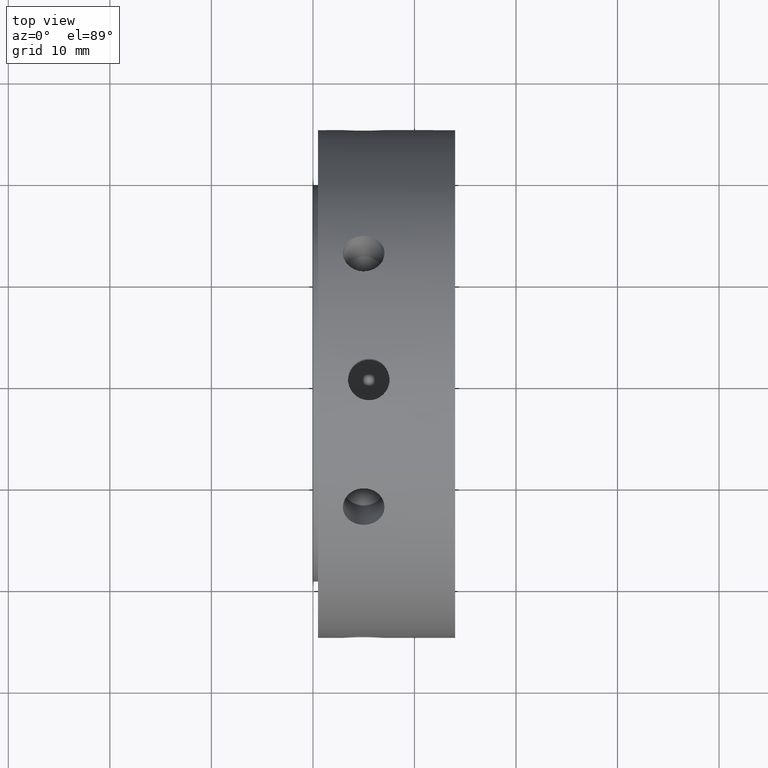
[diagram: clean part render]
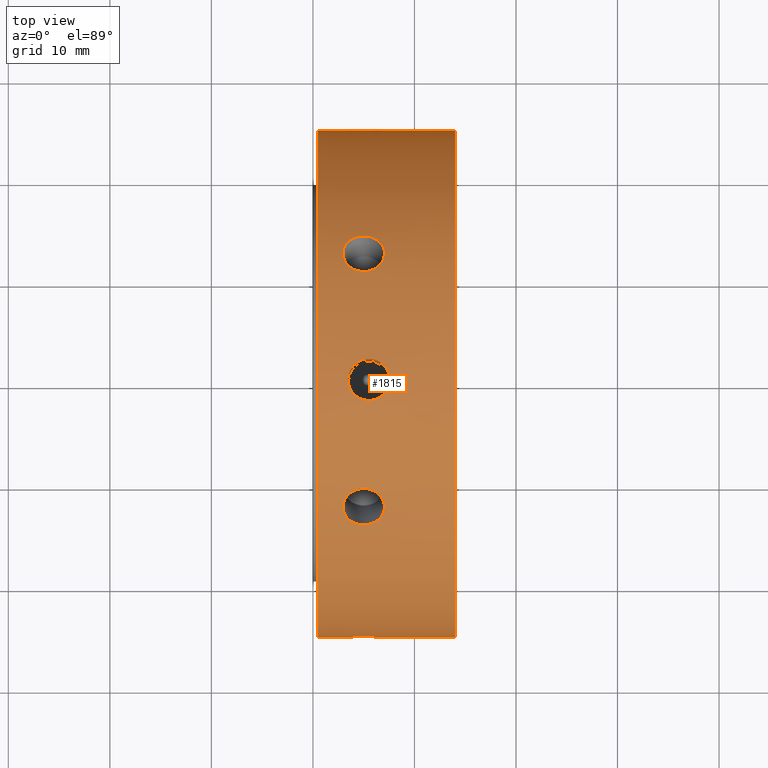
[diagram: same view with one face highlighted and labeled with its STEP entity id]
A machine part, top view. The second image highlights one B-rep face of the part: STEP entity #1815.
In plain terms, the highlighted cylindrical surface (bore or boss wall) has radius 25 mm, axis along (1, 0, 0).
Its self-contained STEP definition (entity closure, byte-faithful):
#534=CARTESIAN_POINT('',(2.949999999999995,12.500000000000018,21.650635094610951));
#535=VERTEX_POINT('',#534);
#536=CARTESIAN_POINT('',(7.049999999999994,12.500000000000014,21.650635094610955));
#537=VERTEX_POINT('',#536);
#538=CARTESIAN_POINT('',(2.949999999999995,12.500000000000014,21.650635094610955));
#539=CARTESIAN_POINT('',(2.949999999999995,12.723024458328126,21.521871863559348));
#540=CARTESIAN_POINT('',(3.001490384965772,12.958652821652588,21.380765823781619));
#541=CARTESIAN_POINT('',(3.210736463123908,13.388103820717696,21.114509377441824));
#542=CARTESIAN_POINT('',(3.36848576715227,13.58204775863438,20.989549648747456));
#543=CARTESIAN_POINT('',(3.732376709121705,13.88661907983961,20.789300767664429));
#544=CARTESIAN_POINT('',(3.962816827223532,14.017602360052274,20.700672288664141));
#545=CARTESIAN_POINT('',(4.467860116695286,14.190866034890195,20.58228195169432));
#546=CARTESIAN_POINT('',(4.742473142802083,14.233256195225065,20.552722887274257));
#547=CARTESIAN_POINT('',(5.257526857197906,14.233256195225065,20.552722887274257));
#548=CARTESIAN_POINT('',(5.532139883304704,14.190866034890192,20.58228195169432));
#549=CARTESIAN_POINT('',(6.037183172776456,14.017602360052276,20.700672288664141));
#550=CARTESIAN_POINT('',(6.267623290878284,13.88661907983961,20.789300767664429));
#551=CARTESIAN_POINT('',(6.631514232847717,13.58204775863438,20.989549648747456));
#552=CARTESIAN_POINT('',(6.789263536876081,13.388103820717696,21.114509377441824));
#553=CARTESIAN_POINT('',(6.998509615034216,12.958652821652588,21.380765823781619));
#554=CARTESIAN_POINT('',(7.049999999999995,12.723024458328126,21.521871863559348));
#555=CARTESIAN_POINT('',(7.049999999999995,12.500000000000014,21.650635094610955));
#556=B_SPLINE_CURVE_WITH_KNOTS('',3,(#538,#539,#540,#541,#542,#543,#544,#545,#546,#547,#548,#549,#550,#551,#552,#553,#554,#555),.UNSPECIFIED.,.F.,.U.,(4,2,2,2,2,2,2,2,4),(0.309031991580675,0.386289930211639,0.463547868842603,0.540805926001976,0.61806398316135,0.695322040320723,0.772580097480097,0.849838036111061,0.927095974742025),.UNSPECIFIED.);
#557=EDGE_CURVE('',#535,#537,#556,.T.);
#559=CARTESIAN_POINT('',(7.049999999999994,12.500000000000014,21.650635094610955));
#560=CARTESIAN_POINT('',(7.049999999999994,12.276975541671899,21.779398325662562));
#561=CARTESIAN_POINT('',(6.998509615034218,12.036959944934742,21.91290545426483));
#562=CARTESIAN_POINT('',(6.789263536876081,11.591649598950557,22.151692705965928));
#563=CARTESIAN_POINT('',(6.631514232847717,11.38645933049288,22.257173218764574));
#564=CARTESIAN_POINT('',(6.267623290878284,11.060753051792954,22.420815279650981));
#565=CARTESIAN_POINT('',(6.037183172776459,10.9185068973736,22.489935888286027));
#566=CARTESIAN_POINT('',(5.532139883304708,10.729346020576177,22.580791463763802));
#567=CARTESIAN_POINT('',(5.257526857197906,10.682552039708868,22.602722887274261));
#568=CARTESIAN_POINT('',(4.999999999999995,10.682552039708868,22.602722887274261));
#569=CARTESIAN_POINT('',(4.742473142802083,10.682552039708868,22.602722887274261));
#570=CARTESIAN_POINT('',(4.467860116695283,10.729346020576177,22.580791463763802));
#571=CARTESIAN_POINT('',(3.962816827223531,10.9185068973736,22.489935888286027));
#572=CARTESIAN_POINT('',(3.732376709121705,11.060753051792954,22.420815279650981));
#573=CARTESIAN_POINT('',(3.368485767152272,11.38645933049288,22.257173218764574));
#574=CARTESIAN_POINT('',(3.210736463123908,11.591649598950557,22.151692705965928));
#575=CARTESIAN_POINT('',(3.001490384965773,12.036959944934742,21.91290545426483));
#576=CARTESIAN_POINT('',(2.949999999999995,12.276975541671902,21.779398325662562));
#577=CARTESIAN_POINT('',(2.949999999999995,12.500000000000016,21.650635094610955));
#578=B_SPLINE_CURVE_WITH_KNOTS('',3,(#559,#560,#561,#562,#563,#564,#565,#566,#567,#568,#569,#570,#571,#572,#573,#574,#575,#576,#577),.UNSPECIFIED.,.F.,.U.,(4,2,2,2,3,2,2,2,4),(0.927095974742025,1.004353913372989,1.081611852003953,1.158869909163326,1.2361279663227,1.313386023482073,1.390644080641447,1.467902019272411,1.545159957903374),.UNSPECIFIED.);
#579=EDGE_CURVE('',#537,#535,#578,.T.);
#646=CARTESIAN_POINT('',(2.949999999999995,24.999999999999996,-1.665335E-014));
#647=VERTEX_POINT('',#646);
#648=CARTESIAN_POINT('',(7.049999999999994,24.999999999999996,-8.881784E-015));
#649=VERTEX_POINT('',#648);
#650=CARTESIAN_POINT('',(2.949999999999994,24.999999999999996,-9.992007E-015));
#651=CARTESIAN_POINT('',(2.949999999999994,24.999999999999996,-0.257526462103223));
#652=CARTESIAN_POINT('',(3.001490384965772,24.995612766587307,-0.532139630483217));
#653=CARTESIAN_POINT('',(3.210736463123908,24.979753419668231,-1.037183328524106));
#654=CARTESIAN_POINT('',(3.368485767152271,24.968507089127225,-1.267623570017132));
#655=CARTESIAN_POINT('',(3.732376709121705,24.94737213163253,-1.631514511986566));
#656=CARTESIAN_POINT('',(3.962816827223532,24.936109257425848,-1.789263599621893));
#657=CARTESIAN_POINT('',(4.467860116695285,24.920212055466337,-1.998509512069489));
#658=CARTESIAN_POINT('',(4.742473142802083,24.915808234933898,-2.05000000000001));
#659=CARTESIAN_POINT('',(5.257526857197906,24.915808234933898,-2.05000000000001));
#660=CARTESIAN_POINT('',(5.532139883304705,24.920212055466337,-1.998509512069488));
#661=CARTESIAN_POINT('',(6.037183172776457,24.936109257425848,-1.789263599621893));
#662=CARTESIAN_POINT('',(6.267623290878284,24.94737213163253,-1.631514511986566));
#663=CARTESIAN_POINT('',(6.631514232847717,24.968507089127225,-1.267623570017132));
#664=CARTESIAN_POINT('',(6.789263536876082,24.979753419668231,-1.037183328524106));
#665=CARTESIAN_POINT('',(6.998509615034219,24.995612766587307,-0.532139630483217));
#666=CARTESIAN_POINT('',(7.049999999999994,24.999999999999996,-0.257526462103223));
#667=CARTESIAN_POINT('',(7.049999999999994,24.999999999999996,-1.033895E-014));
#668=B_SPLINE_CURVE_WITH_KNOTS('',3,(#650,#651,#652,#653,#654,#655,#656,#657,#658,#659,#660,#661,#662,#663,#664,#665,#666,#667),.UNSPECIFIED.,.F.,.U.,(4,2,2,2,2,2,2,2,4),(0.309031991580675,0.386289930211639,0.463547868842603,0.540805926001976,0.61806398316135,0.695322040320723,0.772580097480097,0.849838036111061,0.927095974742024),.UNSPECIFIED.);
#669=EDGE_CURVE('',#647,#649,#668,.T.);
#671=CARTESIAN_POINT('',(7.049999999999994,24.999999999999996,-1.061651E-014));
#672=CARTESIAN_POINT('',(7.049999999999994,24.999999999999996,0.257526462103203));
#673=CARTESIAN_POINT('',(6.998509615034218,24.995612766587307,0.532139630483195));
#674=CARTESIAN_POINT('',(6.789263536876081,24.979753419668231,1.037183328524085));
#675=CARTESIAN_POINT('',(6.631514232847717,24.968507089127225,1.267623570017111));
#676=CARTESIAN_POINT('',(6.267623290878284,24.94737213163253,1.631514511986545));
#677=CARTESIAN_POINT('',(6.037183172776457,24.936109257425848,1.789263599621872));
#678=CARTESIAN_POINT('',(5.532139883304704,24.920212055466337,1.998509512069468));
#679=CARTESIAN_POINT('',(5.257526857197906,24.915808234933898,2.04999999999999));
#680=CARTESIAN_POINT('',(4.999999999999995,24.915808234933898,2.04999999999999));
#681=CARTESIAN_POINT('',(4.742473142802083,24.915808234933898,2.04999999999999));
#682=CARTESIAN_POINT('',(4.467860116695284,24.920212055466337,1.998509512069468));
#683=CARTESIAN_POINT('',(3.962816827223531,24.936109257425848,1.789263599621872));
#684=CARTESIAN_POINT('',(3.732376709121705,24.94737213163253,1.631514511986545));
#685=CARTESIAN_POINT('',(3.36848576715227,24.968507089127225,1.267623570017112));
#686=CARTESIAN_POINT('',(3.210736463123908,24.979753419668231,1.037183328524086));
#687=CARTESIAN_POINT('',(3.001490384965772,24.995612766587307,0.532139630483196));
#688=CARTESIAN_POINT('',(2.949999999999994,24.999999999999996,0.257526462103203));
#689=CARTESIAN_POINT('',(2.949999999999994,24.999999999999996,-9.992007E-015));
#690=B_SPLINE_CURVE_WITH_KNOTS('',3,(#671,#672,#673,#674,#675,#676,#677,#678,#679,#680,#681,#682,#683,#684,#685,#686,#687,#688,#689),.UNSPECIFIED.,.F.,.U.,(4,2,2,2,3,2,2,2,4),(0.927095974742024,1.004353913372988,1.081611852003952,1.158869909163326,1.236127966322699,1.313386023482073,1.390644080641446,1.46790201927241,1.545159957903374),.UNSPECIFIED.);
#691=EDGE_CURVE('',#649,#647,#690,.T.);
#758=CARTESIAN_POINT('',(2.949999999999995,12.499999999999993,-21.650635094610969));
#759=VERTEX_POINT('',#758);
#760=CARTESIAN_POINT('',(7.049999999999994,12.5,-21.650635094610962));
#761=VERTEX_POINT('',#760);
#762=CARTESIAN_POINT('',(2.949999999999994,12.499999999999996,-21.650635094610962));
#763=CARTESIAN_POINT('',(2.949999999999994,12.276975541671881,-21.779398325662569));
#764=CARTESIAN_POINT('',(3.001490384965772,12.036959944934726,-21.912905454264838));
#765=CARTESIAN_POINT('',(3.210736463123907,11.591649598950543,-22.151692705965935));
#766=CARTESIAN_POINT('',(3.368485767152272,11.386459330492862,-22.257173218764585));
#767=CARTESIAN_POINT('',(3.732376709121705,11.060753051792936,-22.420815279650988));
#768=CARTESIAN_POINT('',(3.962816827223531,10.918506897373579,-22.489935888286034));
#769=CARTESIAN_POINT('',(4.467860116695285,10.729346020576154,-22.580791463763809));
#770=CARTESIAN_POINT('',(4.742473142802083,10.682552039708849,-22.602722887274275));
#771=CARTESIAN_POINT('',(5.257526857197906,10.682552039708849,-22.602722887274275));
#772=CARTESIAN_POINT('',(5.532139883304705,10.729346020576154,-22.580791463763813));
#773=CARTESIAN_POINT('',(6.037183172776458,10.918506897373579,-22.489935888286038));
#774=CARTESIAN_POINT('',(6.267623290878284,11.060753051792936,-22.420815279650999));
#775=CARTESIAN_POINT('',(6.631514232847717,11.386459330492862,-22.257173218764589));
#776=CARTESIAN_POINT('',(6.78926353687608,11.591649598950539,-22.151692705965935));
#777=CARTESIAN_POINT('',(6.998509615034216,12.036959944934726,-21.912905454264838));
#778=CARTESIAN_POINT('',(7.049999999999995,12.276975541671881,-21.779398325662569));
#779=CARTESIAN_POINT('',(7.049999999999995,12.499999999999996,-21.650635094610962));
#780=B_SPLINE_CURVE_WITH_KNOTS('',3,(#762,#763,#764,#765,#766,#767,#768,#769,#770,#771,#772,#773,#774,#775,#776,#777,#778,#779),.UNSPECIFIED.,.F.,.U.,(4,2,2,2,2,2,2,2,4),(0.309031991580675,0.386289930211639,0.463547868842603,0.540805926001976,0.61806398316135,0.695322040320723,0.772580097480097,0.849838036111061,0.927095974742025),.UNSPECIFIED.);
#781=EDGE_CURVE('',#759,#761,#780,.T.);
#783=CARTESIAN_POINT('',(7.049999999999994,12.499999999999996,-21.650635094610962));
#784=CARTESIAN_POINT('',(7.049999999999994,12.723024458328108,-21.521871863559355));
#785=CARTESIAN_POINT('',(6.998509615034218,12.958652821652571,-21.380765823781633));
#786=CARTESIAN_POINT('',(6.789263536876081,13.388103820717678,-21.114509377441841));
#787=CARTESIAN_POINT('',(6.631514232847717,13.58204775863436,-20.989549648747463));
#788=CARTESIAN_POINT('',(6.267623290878284,13.886619079839591,-20.789300767664436));
#789=CARTESIAN_POINT('',(6.037183172776458,14.017602360052257,-20.700672288664158));
#790=CARTESIAN_POINT('',(5.532139883304707,14.190866034890178,-20.582281951694338));
#791=CARTESIAN_POINT('',(5.257526857197906,14.233256195225048,-20.552722887274271));
#792=CARTESIAN_POINT('',(4.999999999999995,14.233256195225048,-20.552722887274271));
#793=CARTESIAN_POINT('',(4.742473142802083,14.233256195225048,-20.552722887274271));
#794=CARTESIAN_POINT('',(4.467860116695285,14.190866034890179,-20.582281951694334));
#795=CARTESIAN_POINT('',(3.96281682722353,14.017602360052258,-20.700672288664155));
#796=CARTESIAN_POINT('',(3.732376709121707,13.886619079839594,-20.789300767664439));
#797=CARTESIAN_POINT('',(3.368485767152272,13.582047758634364,-20.989549648747463));
#798=CARTESIAN_POINT('',(3.210736463123909,13.388103820717681,-21.114509377441838));
#799=CARTESIAN_POINT('',(3.001490384965772,12.958652821652571,-21.380765823781633));
#800=CARTESIAN_POINT('',(2.949999999999995,12.723024458328108,-21.521871863559355));
#801=CARTESIAN_POINT('',(2.949999999999995,12.499999999999996,-21.650635094610962));
#802=B_SPLINE_CURVE_WITH_KNOTS('',3,(#783,#784,#785,#786,#787,#788,#789,#790,#791,#792,#793,#794,#795,#796,#797,#798,#799,#800,#801),.UNSPECIFIED.,.F.,.U.,(4,2,2,2,3,2,2,2,4),(0.927095974742025,1.004353913372989,1.081611852003953,1.158869909163326,1.2361279663227,1.313386023482073,1.390644080641447,1.467902019272411,1.545159957903375),.UNSPECIFIED.);
#803=EDGE_CURVE('',#761,#759,#802,.T.);
#870=CARTESIAN_POINT('',(2.949999999999995,-12.500000000000004,-21.650635094610955));
#871=VERTEX_POINT('',#870);
#872=CARTESIAN_POINT('',(7.049999999999994,-12.5,-21.650635094610958));
#873=VERTEX_POINT('',#872);
#874=CARTESIAN_POINT('',(2.949999999999995,-12.5,-21.650635094610958));
#875=CARTESIAN_POINT('',(2.949999999999995,-12.723024458328114,-21.521871863559351));
#876=CARTESIAN_POINT('',(3.001490384965772,-12.958652821652576,-21.380765823781623));
#877=CARTESIAN_POINT('',(3.210736463123908,-13.388103820717685,-21.114509377441827));
#878=CARTESIAN_POINT('',(3.36848576715227,-13.582047758634365,-20.989549648747463));
#879=CARTESIAN_POINT('',(3.732376709121705,-13.886619079839598,-20.789300767664436));
#880=CARTESIAN_POINT('',(3.96281682722353,-14.017602360052264,-20.700672288664155));
#881=CARTESIAN_POINT('',(4.467860116695283,-14.190866034890185,-20.582281951694334));
#882=CARTESIAN_POINT('',(4.742473142802083,-14.233256195225053,-20.552722887274271));
#883=CARTESIAN_POINT('',(5.257526857197905,-14.233256195225053,-20.552722887274271));
#884=CARTESIAN_POINT('',(5.532139883304704,-14.190866034890185,-20.582281951694334));
#885=CARTESIAN_POINT('',(6.037183172776457,-14.017602360052264,-20.700672288664155));
#886=CARTESIAN_POINT('',(6.267623290878283,-13.886619079839599,-20.789300767664436));
#887=CARTESIAN_POINT('',(6.631514232847717,-13.582047758634367,-20.989549648747463));
#888=CARTESIAN_POINT('',(6.789263536876082,-13.388103820717685,-21.114509377441827));
#889=CARTESIAN_POINT('',(6.998509615034219,-12.958652821652574,-21.38076582378163));
#890=CARTESIAN_POINT('',(7.049999999999994,-12.723024458328114,-21.521871863559351));
#891=CARTESIAN_POINT('',(7.049999999999994,-12.5,-21.650635094610958));
#892=B_SPLINE_CURVE_WITH_KNOTS('',3,(#874,#875,#876,#877,#878,#879,#880,#881,#882,#883,#884,#885,#886,#887,#888,#889,#890,#891),.UNSPECIFIED.,.F.,.U.,(4,2,2,2,2,2,2,2,4),(0.309031991580675,0.386289930211639,0.463547868842603,0.540805926001976,0.61806398316135,0.695322040320723,0.772580097480096,0.849838036111061,0.927095974742025),.UNSPECIFIED.);
#893=EDGE_CURVE('',#871,#873,#892,.T.);
#895=CARTESIAN_POINT('',(7.049999999999994,-12.5,-21.650635094610962));
#896=CARTESIAN_POINT('',(7.049999999999994,-12.276975541671888,-21.779398325662569));
#897=CARTESIAN_POINT('',(6.998509615034216,-12.036959944934729,-21.912905454264838));
#898=CARTESIAN_POINT('',(6.789263536876082,-11.591649598950545,-22.151692705965935));
#899=CARTESIAN_POINT('',(6.631514232847717,-11.386459330492869,-22.257173218764585));
#900=CARTESIAN_POINT('',(6.267623290878284,-11.060753051792943,-22.420815279650988));
#901=CARTESIAN_POINT('',(6.037183172776455,-10.918506897373582,-22.489935888286038));
#902=CARTESIAN_POINT('',(5.532139883304701,-10.729346020576159,-22.580791463763813));
#903=CARTESIAN_POINT('',(5.257526857197906,-10.682552039708852,-22.602722887274275));
#904=CARTESIAN_POINT('',(4.999999999999995,-10.682552039708852,-22.602722887274275));
#905=CARTESIAN_POINT('',(4.742473142802083,-10.682552039708852,-22.602722887274275));
#906=CARTESIAN_POINT('',(4.467860116695284,-10.729346020576159,-22.580791463763813));
#907=CARTESIAN_POINT('',(3.96281682722353,-10.918506897373586,-22.489935888286038));
#908=CARTESIAN_POINT('',(3.732376709121705,-11.060753051792943,-22.420815279650988));
#909=CARTESIAN_POINT('',(3.368485767152272,-11.386459330492869,-22.257173218764585));
#910=CARTESIAN_POINT('',(3.210736463123908,-11.591649598950545,-22.151692705965935));
#911=CARTESIAN_POINT('',(3.001490384965773,-12.036959944934729,-21.912905454264838));
#912=CARTESIAN_POINT('',(2.949999999999994,-12.276975541671888,-21.779398325662569));
#913=CARTESIAN_POINT('',(2.949999999999994,-12.500000000000002,-21.650635094610962));
#914=B_SPLINE_CURVE_WITH_KNOTS('',3,(#895,#896,#897,#898,#899,#900,#901,#902,#903,#904,#905,#906,#907,#908,#909,#910,#911,#912,#913),.UNSPECIFIED.,.F.,.U.,(4,2,2,2,3,2,2,2,4),(0.927095974742025,1.004353913372988,1.081611852003952,1.158869909163326,1.2361279663227,1.313386023482073,1.390644080641447,1.467902019272411,1.545159957903374),.UNSPECIFIED.);
#915=EDGE_CURVE('',#873,#871,#914,.T.);
#982=CARTESIAN_POINT('',(2.949999999999995,-24.999999999999996,6.938894E-015));
#983=VERTEX_POINT('',#982);
#984=CARTESIAN_POINT('',(7.049999999999994,-24.999999999999996,0.0));
#985=VERTEX_POINT('',#984);
#986=CARTESIAN_POINT('',(2.949999999999995,-24.999999999999996,2.081668E-016));
#987=CARTESIAN_POINT('',(2.949999999999995,-24.999999999999996,0.257526462103213));
#988=CARTESIAN_POINT('',(3.001490384965771,-24.995612766587307,0.532139630483206));
#989=CARTESIAN_POINT('',(3.210736463123907,-24.979753419668231,1.037183328524097));
#990=CARTESIAN_POINT('',(3.368485767152271,-24.968507089127225,1.267623570017122));
#991=CARTESIAN_POINT('',(3.732376709121705,-24.94737213163253,1.631514511986556));
#992=CARTESIAN_POINT('',(3.962816827223532,-24.936109257425848,1.789263599621882));
#993=CARTESIAN_POINT('',(4.467860116695285,-24.920212055466337,1.998509512069478));
#994=CARTESIAN_POINT('',(4.742473142802083,-24.915808234933898,2.050000000000001));
#995=CARTESIAN_POINT('',(5.257526857197906,-24.915808234933898,2.050000000000001));
#996=CARTESIAN_POINT('',(5.532139883304704,-24.920212055466337,1.998509512069479));
#997=CARTESIAN_POINT('',(6.037183172776457,-24.936109257425848,1.789263599621883));
#998=CARTESIAN_POINT('',(6.267623290878284,-24.94737213163253,1.631514511986556));
#999=CARTESIAN_POINT('',(6.631514232847717,-24.968507089127225,1.267623570017122));
#1000=CARTESIAN_POINT('',(6.789263536876081,-24.979753419668231,1.037183328524096));
#1001=CARTESIAN_POINT('',(6.998509615034218,-24.995612766587307,0.532139630483206));
#1002=CARTESIAN_POINT('',(7.049999999999994,-24.999999999999996,0.257526462103214));
#1003=CARTESIAN_POINT('',(7.049999999999994,-24.999999999999996,1.318390E-015));
#1004=B_SPLINE_CURVE_WITH_KNOTS('',3,(#986,#987,#988,#989,#990,#991,#992,#993,#994,#995,#996,#997,#998,#999,#1000,#1001,#1002,#1003),.UNSPECIFIED.,.F.,.U.,(4,2,2,2,2,2,2,2,4),(0.309031991580675,0.386289930211639,0.463547868842603,0.540805926001976,0.61806398316135,0.695322040320723,0.772580097480097,0.849838036111061,0.927095974742025),.UNSPECIFIED.);
#1005=EDGE_CURVE('',#983,#985,#1004,.T.);
#1007=CARTESIAN_POINT('',(7.049999999999994,-24.999999999999996,8.326673E-016));
#1008=CARTESIAN_POINT('',(7.049999999999994,-24.999999999999996,-0.257526462103212));
#1009=CARTESIAN_POINT('',(6.998509615034218,-24.995612766587307,-0.532139630483204));
#1010=CARTESIAN_POINT('',(6.789263536876081,-24.979753419668231,-1.037183328524094));
#1011=CARTESIAN_POINT('',(6.631514232847717,-24.968507089127225,-1.26762357001712));
#1012=CARTESIAN_POINT('',(6.267623290878284,-24.94737213163253,-1.631514511986554));
#1013=CARTESIAN_POINT('',(6.037183172776458,-24.936109257425848,-1.789263599621882));
#1014=CARTESIAN_POINT('',(5.532139883304705,-24.920212055466337,-1.998509512069478));
#1015=CARTESIAN_POINT('',(5.257526857197906,-24.915808234933898,-2.049999999999999));
#1016=CARTESIAN_POINT('',(4.999999999999995,-24.915808234933898,-2.049999999999999));
#1017=CARTESIAN_POINT('',(4.742473142802083,-24.915808234933898,-2.049999999999999));
#1018=CARTESIAN_POINT('',(4.467860116695285,-24.920212055466337,-1.998509512069477));
#1019=CARTESIAN_POINT('',(3.962816827223532,-24.936109257425848,-1.789263599621881));
#1020=CARTESIAN_POINT('',(3.732376709121705,-24.94737213163253,-1.631514511986555));
#1021=CARTESIAN_POINT('',(3.368485767152271,-24.968507089127225,-1.267623570017121));
#1022=CARTESIAN_POINT('',(3.210736463123907,-24.979753419668231,-1.037183328524095));
#1023=CARTESIAN_POINT('',(3.001490384965771,-24.995612766587307,-0.532139630483206));
#1024=CARTESIAN_POINT('',(2.949999999999994,-24.999999999999996,-0.257526462103213));
#1025=CARTESIAN_POINT('',(2.949999999999994,-24.999999999999996,4.163336E-016));
#1026=B_SPLINE_CURVE_WITH_KNOTS('',3,(#1007,#1008,#1009,#1010,#1011,#1012,#1013,#1014,#1015,#1016,#1017,#1018,#1019,#1020,#1021,#1022,#1023,#1024,#1025),.UNSPECIFIED.,.F.,.U.,(4,2,2,2,3,2,2,2,4),(0.927095974742025,1.004353913372988,1.081611852003952,1.158869909163326,1.236127966322699,1.313386023482073,1.390644080641446,1.46790201927241,1.545159957903374),.UNSPECIFIED.);
#1027=EDGE_CURVE('',#985,#983,#1026,.T.);
#1131=CARTESIAN_POINT('',(2.949999999999995,-12.499999999999993,21.650635094610962));
#1132=VERTEX_POINT('',#1131);
#1133=CARTESIAN_POINT('',(7.049999999999994,-12.5,21.650635094610958));
#1134=VERTEX_POINT('',#1133);
#1135=CARTESIAN_POINT('',(2.949999999999994,-12.5,21.650635094610962));
#1136=CARTESIAN_POINT('',(2.949999999999994,-12.276975541671886,21.779398325662569));
#1137=CARTESIAN_POINT('',(3.001490384965773,-12.036959944934729,21.912905454264838));
#1138=CARTESIAN_POINT('',(3.210736463123908,-11.591649598950545,22.151692705965935));
#1139=CARTESIAN_POINT('',(3.368485767152272,-11.386459330492865,22.257173218764585));
#1140=CARTESIAN_POINT('',(3.732376709121705,-11.06075305179294,22.420815279650988));
#1141=CARTESIAN_POINT('',(3.962816827223531,-10.918506897373588,22.489935888286038));
#1142=CARTESIAN_POINT('',(4.467860116695284,-10.729346020576163,22.580791463763813));
#1143=CARTESIAN_POINT('',(4.742473142802083,-10.682552039708852,22.602722887274268));
#1144=CARTESIAN_POINT('',(5.257526857197908,-10.682552039708852,22.602722887274268));
#1145=CARTESIAN_POINT('',(5.532139883304703,-10.729346020576161,22.580791463763813));
#1146=CARTESIAN_POINT('',(6.037183172776457,-10.918506897373586,22.489935888286038));
#1147=CARTESIAN_POINT('',(6.267623290878284,-11.06075305179294,22.420815279650988));
#1148=CARTESIAN_POINT('',(6.631514232847717,-11.386459330492865,22.257173218764585));
#1149=CARTESIAN_POINT('',(6.789263536876079,-11.591649598950545,22.151692705965935));
#1150=CARTESIAN_POINT('',(6.998509615034216,-12.036959944934731,21.912905454264838));
#1151=CARTESIAN_POINT('',(7.049999999999995,-12.276975541671884,21.779398325662569));
#1152=CARTESIAN_POINT('',(7.049999999999995,-12.499999999999998,21.650635094610962));
#1153=B_SPLINE_CURVE_WITH_KNOTS('',3,(#1135,#1136,#1137,#1138,#1139,#1140,#1141,#1142,#1143,#1144,#1145,#1146,#1147,#1148,#1149,#1150,#1151,#1152),.UNSPECIFIED.,.F.,.U.,(4,2,2,2,2,2,2,2,4),(0.309031991580675,0.386289930211639,0.463547868842602,0.540805926001976,0.618063983161349,0.695322040320723,0.772580097480097,0.84983803611106,0.927095974742024),.UNSPECIFIED.);
#1154=EDGE_CURVE('',#1132,#1134,#1153,.T.);
#1156=CARTESIAN_POINT('',(7.049999999999994,-12.499999999999998,21.650635094610958));
#1157=CARTESIAN_POINT('',(7.049999999999994,-12.723024458328112,21.521871863559351));
#1158=CARTESIAN_POINT('',(6.998509615034218,-12.958652821652574,21.380765823781623));
#1159=CARTESIAN_POINT('',(6.789263536876081,-13.388103820717683,21.114509377441827));
#1160=CARTESIAN_POINT('',(6.631514232847717,-13.582047758634364,20.989549648747463));
#1161=CARTESIAN_POINT('',(6.267623290878284,-13.886619079839594,20.789300767664436));
#1162=CARTESIAN_POINT('',(6.037183172776458,-14.017602360052264,20.700672288664155));
#1163=CARTESIAN_POINT('',(5.532139883304707,-14.190866034890185,20.582281951694334));
#1164=CARTESIAN_POINT('',(5.257526857197906,-14.233256195225049,20.552722887274271));
#1165=CARTESIAN_POINT('',(4.999999999999995,-14.233256195225049,20.552722887274271));
#1166=CARTESIAN_POINT('',(4.742473142802083,-14.233256195225049,20.552722887274271));
#1167=CARTESIAN_POINT('',(4.467860116695283,-14.190866034890181,20.582281951694327));
#1168=CARTESIAN_POINT('',(3.96281682722353,-14.017602360052262,20.700672288664151));
#1169=CARTESIAN_POINT('',(3.732376709121705,-13.886619079839594,20.789300767664436));
#1170=CARTESIAN_POINT('',(3.368485767152271,-13.582047758634364,20.989549648747463));
#1171=CARTESIAN_POINT('',(3.210736463123908,-13.388103820717685,21.114509377441827));
#1172=CARTESIAN_POINT('',(3.001490384965772,-12.958652821652576,21.380765823781623));
#1173=CARTESIAN_POINT('',(2.949999999999995,-12.723024458328112,21.521871863559351));
#1174=CARTESIAN_POINT('',(2.949999999999995,-12.499999999999998,21.650635094610958));
#1175=B_SPLINE_CURVE_WITH_KNOTS('',3,(#1156,#1157,#1158,#1159,#1160,#1161,#1162,#1163,#1164,#1165,#1166,#1167,#1168,#1169,#1170,#1171,#1172,#1173,#1174),.UNSPECIFIED.,.F.,.U.,(4,2,2,2,3,2,2,2,4),(0.927095974742024,1.004353913372988,1.081611852003952,1.158869909163326,1.236127966322699,1.313386023482073,1.390644080641446,1.46790201927241,1.545159957903374),.UNSPECIFIED.);
#1176=EDGE_CURVE('',#1134,#1132,#1175,.T.);
#1255=CARTESIAN_POINT('',(5.499999999999994,22.602722887274265,-10.682552039708861));
#1256=VERTEX_POINT('',#1255);
#1257=CARTESIAN_POINT('',(5.499999999999994,22.602722887274265,-10.682552039708856));
#1258=CARTESIAN_POINT('',(5.242473142802082,22.602722887274265,-10.682552039708856));
#1259=CARTESIAN_POINT('',(4.967860116695282,22.580791463763813,-10.729346020576161));
#1260=CARTESIAN_POINT('',(4.462816827223528,22.489935888286038,-10.918506897373589));
#1261=CARTESIAN_POINT('',(4.232376709121704,22.420815279650988,-11.060753051792949));
#1262=CARTESIAN_POINT('',(3.86848576715227,22.257173218764585,-11.386459330492876));
#1263=CARTESIAN_POINT('',(3.710736463123905,22.151692705965932,-11.591649598950555));
#1264=CARTESIAN_POINT('',(3.501490384965772,21.912905454264834,-12.036959944934742));
#1265=CARTESIAN_POINT('',(3.449999999999993,21.779398325662566,-12.276975541671895));
#1266=CARTESIAN_POINT('',(3.449999999999995,21.521871863559351,-12.723024458328123));
#1267=CARTESIAN_POINT('',(3.501490384965772,21.38076582378163,-12.958652821652583));
#1268=CARTESIAN_POINT('',(3.710736463123909,21.114509377441834,-13.388103820717692));
#1269=CARTESIAN_POINT('',(3.868485767152271,20.989549648747456,-13.582047758634374));
#1270=CARTESIAN_POINT('',(4.232376709121707,20.789300767664432,-13.886619079839605));
#1271=CARTESIAN_POINT('',(4.462816827223533,20.700672288664144,-14.017602360052269));
#1272=CARTESIAN_POINT('',(4.967860116695285,20.582281951694323,-14.190866034890185));
#1273=CARTESIAN_POINT('',(5.242473142802083,20.552722887274268,-14.233256195225056));
#1274=CARTESIAN_POINT('',(5.757526857197906,20.552722887274268,-14.233256195225056));
#1275=CARTESIAN_POINT('',(6.032139883304702,20.582281951694323,-14.190866034890188));
#1276=CARTESIAN_POINT('',(6.537183172776455,20.700672288664144,-14.017602360052273));
#1277=CARTESIAN_POINT('',(6.767623290878282,20.789300767664432,-13.886619079839605));
#1278=CARTESIAN_POINT('',(7.131514232847716,20.989549648747456,-13.582047758634374));
#1279=CARTESIAN_POINT('',(7.28926353687608,21.114509377441834,-13.388103820717689));
#1280=CARTESIAN_POINT('',(7.498509615034217,21.38076582378163,-12.958652821652581));
#1281=CARTESIAN_POINT('',(7.549999999999992,21.521871863559351,-12.723024458328123));
#1282=CARTESIAN_POINT('',(7.549999999999995,21.779398325662562,-12.276975541671895));
#1283=CARTESIAN_POINT('',(7.498509615034216,21.91290545426483,-12.036959944934738));
#1284=CARTESIAN_POINT('',(7.289263536876081,22.151692705965928,-11.591649598950553));
#1285=CARTESIAN_POINT('',(7.131514232847719,22.257173218764585,-11.386459330492876));
#1286=CARTESIAN_POINT('',(6.767623290878285,22.420815279650988,-11.060753051792949));
#1287=CARTESIAN_POINT('',(6.53718317277646,22.489935888286034,-10.918506897373589));
#1288=CARTESIAN_POINT('',(6.032139883304703,22.580791463763809,-10.729346020576161));
#1289=CARTESIAN_POINT('',(5.757526857197906,22.602722887274265,-10.682552039708856));
#1290=CARTESIAN_POINT('',(5.499999999999994,22.602722887274265,-10.682552039708856));
#1291=B_SPLINE_CURVE_WITH_KNOTS('',3,(#1257,#1258,#1259,#1260,#1261,#1262,#1263,#1264,#1265,#1266,#1267,#1268,#1269,#1270,#1271,#1272,#1273,#1274,#1275,#1276,#1277,#1278,#1279,#1280,#1281,#1282,#1283,#1284,#1285,#1286,#1287,#1288,#1289,#1290),.UNSPECIFIED.,.T.,.U.,(4,2,2,2,2,2,2,2,2,2,2,2,2,2,2,2,4),(0.0,0.077258057159374,0.154516114318747,0.231774052949711,0.309031991580675,0.386289930211639,0.463547868842603,0.540805926001977,0.61806398316135,0.695322040320723,0.772580097480096,0.849838036111061,0.927095974742025,1.004353913372988,1.081611852003952,1.158869909163326,1.2361279663227),.UNSPECIFIED.);
#1292=EDGE_CURVE('',#1256,#1256,#1291,.T.);
#1412=CARTESIAN_POINT('',(5.499999999999994,-20.552722887274271,-14.233256195225044));
#1413=VERTEX_POINT('',#1412);
#1414=CARTESIAN_POINT('',(5.499999999999994,-20.552722887274271,-14.233256195225042));
#1415=CARTESIAN_POINT('',(5.242473142802082,-20.552722887274271,-14.233256195225042));
#1416=CARTESIAN_POINT('',(4.967860116695282,-20.582281951694338,-14.190866034890174));
#1417=CARTESIAN_POINT('',(4.462816827223529,-20.700672288664158,-14.017602360052255));
#1418=CARTESIAN_POINT('',(4.232376709121707,-20.789300767664443,-13.886619079839587));
#1419=CARTESIAN_POINT('',(3.868485767152273,-20.98954964874747,-13.582047758634355));
#1420=CARTESIAN_POINT('',(3.710736463123905,-21.114509377441841,-13.388103820717676));
#1421=CARTESIAN_POINT('',(3.501490384965771,-21.380765823781637,-12.958652821652565));
#1422=CARTESIAN_POINT('',(3.449999999999994,-21.521871863559365,-12.723024458328105));
#1423=CARTESIAN_POINT('',(3.449999999999994,-21.77939832566258,-12.276975541671881));
#1424=CARTESIAN_POINT('',(3.501490384965773,-21.912905454264845,-12.036959944934724));
#1425=CARTESIAN_POINT('',(3.710736463123909,-22.151692705965939,-11.591649598950537));
#1426=CARTESIAN_POINT('',(3.86848576715227,-22.257173218764592,-11.386459330492858));
#1427=CARTESIAN_POINT('',(4.232376709121704,-22.420815279650999,-11.060753051792931));
#1428=CARTESIAN_POINT('',(4.462816827223531,-22.489935888286034,-10.918506897373577));
#1429=CARTESIAN_POINT('',(4.967860116695284,-22.580791463763809,-10.729346020576152));
#1430=CARTESIAN_POINT('',(5.242473142802082,-22.602722887274268,-10.682552039708844));
#1431=CARTESIAN_POINT('',(5.757526857197906,-22.602722887274268,-10.682552039708844));
#1432=CARTESIAN_POINT('',(6.032139883304703,-22.580791463763809,-10.729346020576152));
#1433=CARTESIAN_POINT('',(6.537183172776457,-22.489935888286034,-10.918506897373577));
#1434=CARTESIAN_POINT('',(6.767623290878284,-22.420815279650999,-11.060753051792931));
#1435=CARTESIAN_POINT('',(7.131514232847717,-22.257173218764592,-11.386459330492858));
#1436=CARTESIAN_POINT('',(7.289263536876078,-22.151692705965939,-11.591649598950537));
#1437=CARTESIAN_POINT('',(7.498509615034214,-21.912905454264845,-12.036959944934722));
#1438=CARTESIAN_POINT('',(7.549999999999994,-21.77939832566258,-12.276975541671881));
#1439=CARTESIAN_POINT('',(7.549999999999994,-21.521871863559365,-12.723024458328107));
#1440=CARTESIAN_POINT('',(7.498509615034216,-21.380765823781637,-12.958652821652567));
#1441=CARTESIAN_POINT('',(7.289263536876083,-21.114509377441845,-13.388103820717676));
#1442=CARTESIAN_POINT('',(7.131514232847715,-20.98954964874747,-13.582047758634353));
#1443=CARTESIAN_POINT('',(6.767623290878282,-20.789300767664443,-13.886619079839587));
#1444=CARTESIAN_POINT('',(6.537183172776459,-20.700672288664158,-14.017602360052255));
#1445=CARTESIAN_POINT('',(6.032139883304705,-20.582281951694338,-14.190866034890174));
#1446=CARTESIAN_POINT('',(5.757526857197906,-20.552722887274271,-14.233256195225044));
#1447=CARTESIAN_POINT('',(5.499999999999994,-20.552722887274271,-14.233256195225044));
#1448=B_SPLINE_CURVE_WITH_KNOTS('',3,(#1414,#1415,#1416,#1417,#1418,#1419,#1420,#1421,#1422,#1423,#1424,#1425,#1426,#1427,#1428,#1429,#1430,#1431,#1432,#1433,#1434,#1435,#1436,#1437,#1438,#1439,#1440,#1441,#1442,#1443,#1444,#1445,#1446,#1447),.UNSPECIFIED.,.T.,.U.,(4,2,2,2,2,2,2,2,2,2,2,2,2,2,2,2,4),(0.0,0.077258057159374,0.154516114318747,0.231774052949711,0.309031991580675,0.386289930211639,0.463547868842603,0.540805926001976,0.61806398316135,0.695322040320723,0.772580097480097,0.849838036111061,0.927095974742024,1.004353913372988,1.081611852003952,1.158869909163326,1.2361279663227),.UNSPECIFIED.);
#1449=EDGE_CURVE('',#1413,#1413,#1448,.T.);
#1569=CARTESIAN_POINT('',(5.499999999999994,-2.05,24.915808234933898));
#1570=VERTEX_POINT('',#1569);
#1571=CARTESIAN_POINT('',(5.499999999999994,-2.05,24.915808234933898));
#1572=CARTESIAN_POINT('',(5.242473142802082,-2.05,24.915808234933898));
#1573=CARTESIAN_POINT('',(4.967860116695285,-1.998509512069478,24.920212055466333));
#1574=CARTESIAN_POINT('',(4.462816827223531,-1.789263599621882,24.936109257425841));
#1575=CARTESIAN_POINT('',(4.232376709121705,-1.631514511986556,24.94737213163253));
#1576=CARTESIAN_POINT('',(3.868485767152271,-1.267623570017122,24.968507089127225));
#1577=CARTESIAN_POINT('',(3.710736463123907,-1.037183328524096,24.979753419668231));
#1578=CARTESIAN_POINT('',(3.50149038496577,-0.532139630483206,24.995612766587307));
#1579=CARTESIAN_POINT('',(3.449999999999994,-0.257526462103213,24.999999999999996));
#1580=CARTESIAN_POINT('',(3.449999999999994,0.257526462103213,24.999999999999996));
#1581=CARTESIAN_POINT('',(3.501490384965771,0.532139630483207,24.995612766587307));
#1582=CARTESIAN_POINT('',(3.710736463123907,1.037183328524096,24.979753419668231));
#1583=CARTESIAN_POINT('',(3.86848576715227,1.267623570017121,24.968507089127225));
#1584=CARTESIAN_POINT('',(4.232376709121705,1.631514511986556,24.94737213163253));
#1585=CARTESIAN_POINT('',(4.462816827223532,1.789263599621882,24.936109257425841));
#1586=CARTESIAN_POINT('',(4.967860116695285,1.998509512069478,24.920212055466333));
#1587=CARTESIAN_POINT('',(5.242473142802082,2.05,24.915808234933898));
#1588=CARTESIAN_POINT('',(5.757526857197906,2.05,24.915808234933898));
#1589=CARTESIAN_POINT('',(6.032139883304703,1.998509512069478,24.920212055466333));
#1590=CARTESIAN_POINT('',(6.537183172776456,1.789263599621882,24.936109257425841));
#1591=CARTESIAN_POINT('',(6.767623290878282,1.631514511986556,24.94737213163253));
#1592=CARTESIAN_POINT('',(7.131514232847716,1.267623570017123,24.968507089127225));
#1593=CARTESIAN_POINT('',(7.289263536876081,1.037183328524097,24.979753419668231));
#1594=CARTESIAN_POINT('',(7.498509615034217,0.532139630483206,24.995612766587307));
#1595=CARTESIAN_POINT('',(7.549999999999994,0.257526462103214,24.999999999999996));
#1596=CARTESIAN_POINT('',(7.549999999999992,-0.257526462103212,24.999999999999993));
#1597=CARTESIAN_POINT('',(7.498509615034218,-0.532139630483205,24.995612766587307));
#1598=CARTESIAN_POINT('',(7.289263536876083,-1.037183328524094,24.979753419668231));
#1599=CARTESIAN_POINT('',(7.131514232847717,-1.267623570017121,24.968507089127225));
#1600=CARTESIAN_POINT('',(6.767623290878284,-1.631514511986555,24.94737213163253));
#1601=CARTESIAN_POINT('',(6.537183172776457,-1.789263599621882,24.936109257425841));
#1602=CARTESIAN_POINT('',(6.032139883304703,-1.998509512069478,24.920212055466333));
#1603=CARTESIAN_POINT('',(5.757526857197906,-2.05,24.915808234933898));
#1604=CARTESIAN_POINT('',(5.499999999999994,-2.05,24.915808234933898));
#1605=B_SPLINE_CURVE_WITH_KNOTS('',3,(#1571,#1572,#1573,#1574,#1575,#1576,#1577,#1578,#1579,#1580,#1581,#1582,#1583,#1584,#1585,#1586,#1587,#1588,#1589,#1590,#1591,#1592,#1593,#1594,#1595,#1596,#1597,#1598,#1599,#1600,#1601,#1602,#1603,#1604),.UNSPECIFIED.,.T.,.U.,(4,2,2,2,2,2,2,2,2,2,2,2,2,2,2,2,4),(0.0,0.077258057159373,0.154516114318747,0.231774052949711,0.309031991580675,0.386289930211639,0.463547868842603,0.540805926001976,0.61806398316135,0.695322040320723,0.772580097480097,0.849838036111061,0.927095974742025,1.004353913372988,1.081611852003952,1.158869909163326,1.236127966322699),.UNSPECIFIED.);
#1606=EDGE_CURVE('',#1570,#1570,#1605,.T.);
#1748=CARTESIAN_POINT('',(0.499999999999994,24.999999999999996,0.0));
#1749=VERTEX_POINT('',#1748);
#1750=CARTESIAN_POINT('',(0.499999999999994,0.0,0.0));
#1751=DIRECTION('',(1.0,0.0,0.0));
#1752=DIRECTION('',(0.0,1.0,0.0));
#1753=AXIS2_PLACEMENT_3D('',#1750,#1751,#1752);
#1754=CIRCLE('',#1753,24.999999999999996);
#1755=EDGE_CURVE('',#1749,#1749,#1754,.T.);
#1763=CARTESIAN_POINT('',(7.249999999999995,0.0,0.0));
#1764=DIRECTION('',(1.0,0.0,0.0));
#1765=DIRECTION('',(0.0,1.0,0.0));
#1766=AXIS2_PLACEMENT_3D('',#1763,#1764,#1765);
#1767=CYLINDRICAL_SURFACE('',#1766,24.999999999999996);
#1768=CARTESIAN_POINT('',(13.999999999999995,24.999999999999996,0.0));
#1769=VERTEX_POINT('',#1768);
#1770=CARTESIAN_POINT('',(13.999999999999995,0.0,0.0));
#1771=DIRECTION('',(1.0,0.0,0.0));
#1772=DIRECTION('',(0.0,1.0,0.0));
#1773=AXIS2_PLACEMENT_3D('',#1770,#1771,#1772);
#1774=CIRCLE('',#1773,24.999999999999996);
#1775=EDGE_CURVE('',#1769,#1769,#1774,.T.);
#1776=ORIENTED_EDGE('',*,*,#1775,.F.);
#1777=EDGE_LOOP('',(#1776));
#1778=FACE_OUTER_BOUND('',#1777,.T.);
#1779=ORIENTED_EDGE('',*,*,#557,.T.);
#1780=ORIENTED_EDGE('',*,*,#579,.T.);
#1781=EDGE_LOOP('',(#1779,#1780));
#1782=FACE_BOUND('',#1781,.T.);
#1783=ORIENTED_EDGE('',*,*,#669,.T.);
#1784=ORIENTED_EDGE('',*,*,#691,.T.);
#1785=EDGE_LOOP('',(#1783,#1784));
#1786=FACE_BOUND('',#1785,.T.);
#1787=ORIENTED_EDGE('',*,*,#781,.T.);
#1788=ORIENTED_EDGE('',*,*,#803,.T.);
#1789=EDGE_LOOP('',(#1787,#1788));
#1790=FACE_BOUND('',#1789,.T.);
#1791=ORIENTED_EDGE('',*,*,#893,.T.);
#1792=ORIENTED_EDGE('',*,*,#915,.T.);
#1793=EDGE_LOOP('',(#1791,#1792));
#1794=FACE_BOUND('',#1793,.T.);
#1795=ORIENTED_EDGE('',*,*,#1005,.T.);
#1796=ORIENTED_EDGE('',*,*,#1027,.T.);
#1797=EDGE_LOOP('',(#1795,#1796));
#1798=FACE_BOUND('',#1797,.T.);
#1799=ORIENTED_EDGE('',*,*,#1154,.T.);
#1800=ORIENTED_EDGE('',*,*,#1176,.T.);
#1801=EDGE_LOOP('',(#1799,#1800));
#1802=FACE_BOUND('',#1801,.T.);
#1803=ORIENTED_EDGE('',*,*,#1292,.T.);
#1804=EDGE_LOOP('',(#1803));
#1805=FACE_BOUND('',#1804,.T.);
#1806=ORIENTED_EDGE('',*,*,#1449,.T.);
#1807=EDGE_LOOP('',(#1806));
#1808=FACE_BOUND('',#1807,.T.);
#1809=ORIENTED_EDGE('',*,*,#1606,.T.);
#1810=EDGE_LOOP('',(#1809));
#1811=FACE_BOUND('',#1810,.T.);
#1812=ORIENTED_EDGE('',*,*,#1755,.T.);
#1813=EDGE_LOOP('',(#1812));
#1814=FACE_BOUND('',#1813,.T.);
#1815=ADVANCED_FACE('',(#1778,#1782,#1786,#1790,#1794,#1798,#1802,#1805,#1808,#1811,#1814),#1767,.T.);